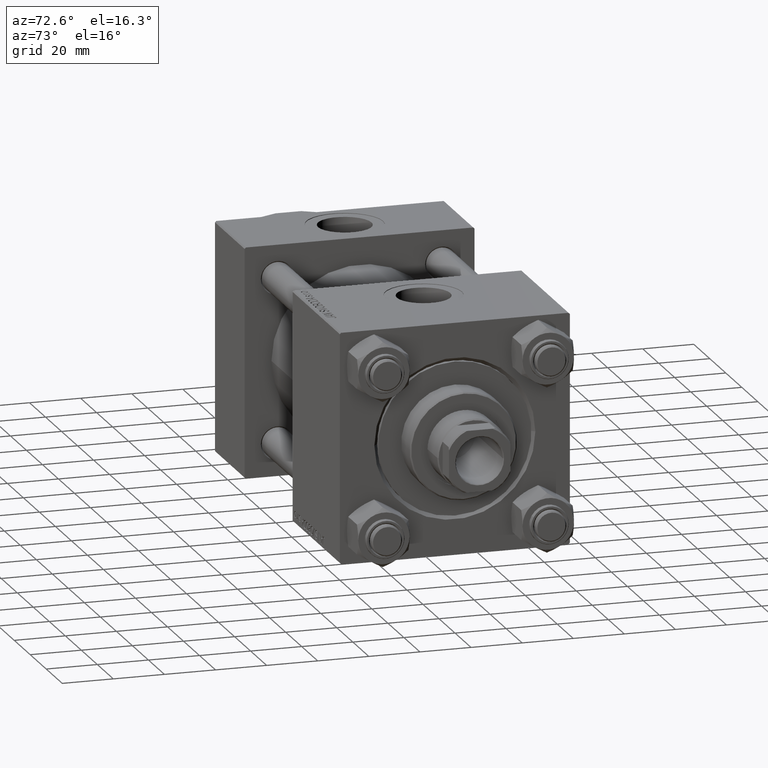
[diagram: clean part render]
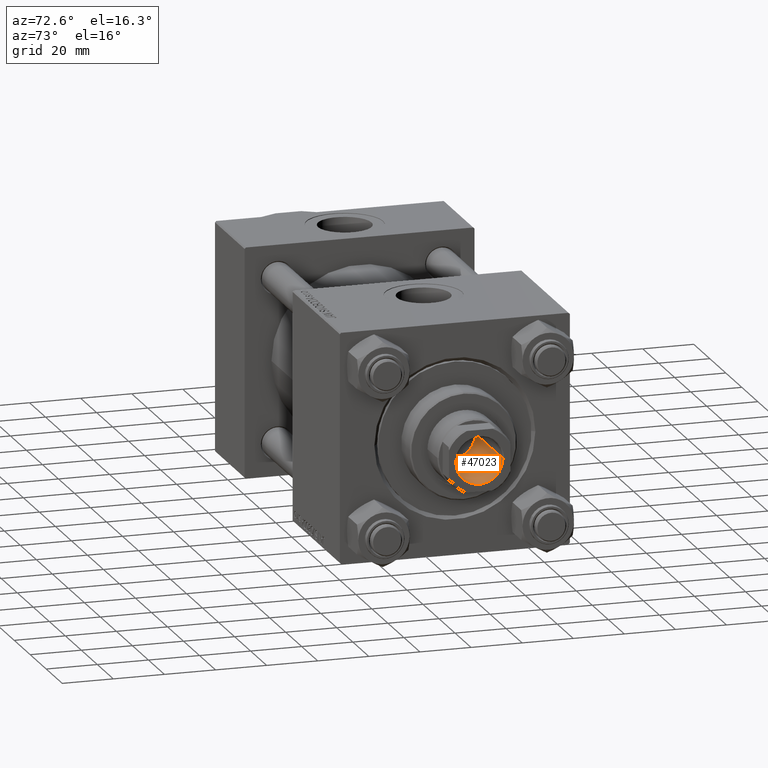
[diagram: same view with one face highlighted and labeled with its STEP entity id]
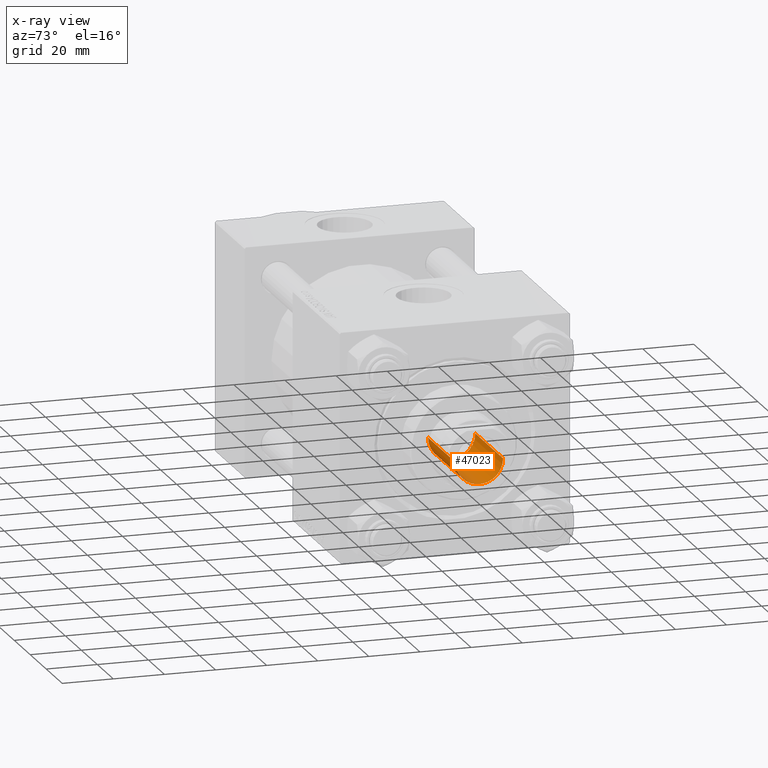
[diagram: x-ray of the same camera — body ghosted, the highlighted face saturated]
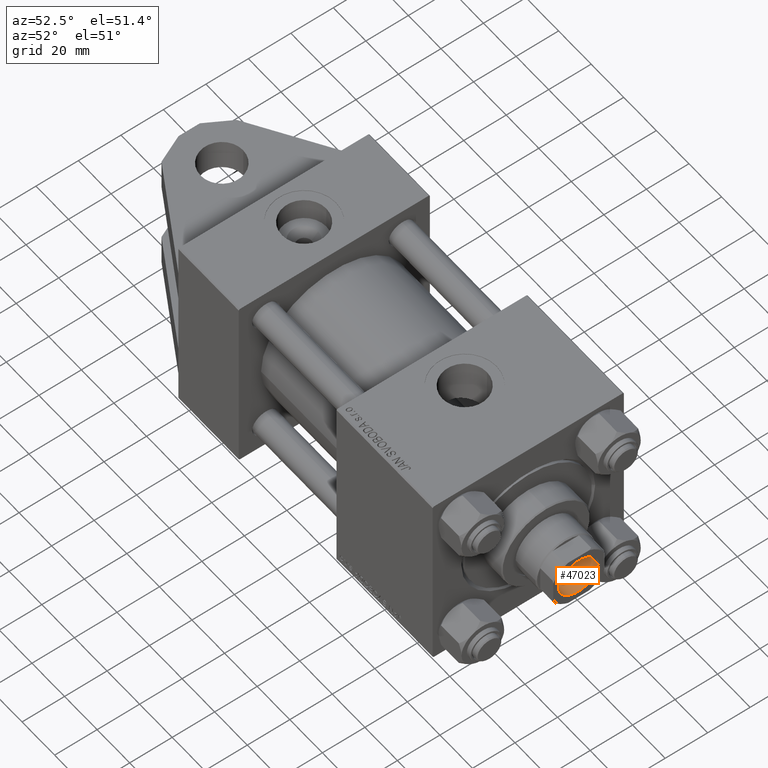
[diagram: same view with one face highlighted and labeled with its STEP entity id]
A machine part, auxiliary view. The second image highlights one B-rep face of the part: STEP entity #47023.
The next image is the same camera in x-ray: the body ghosted, the highlighted face saturated — about 1% of this face is hidden behind the body in this view.
A second angle (auxiliary view) of the same face is appended — the face is thin or edge-on in the first view.
In plain terms, the highlighted cylindrical surface (edge-blend (fillet) strip) has radius 9.25 mm, axis along (1, 0, 0).
Its self-contained STEP definition (entity closure, byte-faithful):
#2223 = FACE_OUTER_BOUND ( 'NONE', #32536, .T. ) ;
#5558 = AXIS2_PLACEMENT_3D ( 'NONE', #17467, #45743, #41053 ) ;
#6167 = DIRECTION ( 'NONE',  ( -0.000000000000000000, -0.000000000000000000, 1.000000000000000000 ) ) ;
#6969 = DIRECTION ( 'NONE',  ( -0.000000000000000000, -0.000000000000000000, 1.000000000000000000 ) ) ;
#13076 = VERTEX_POINT ( 'NONE', #39160 ) ;
#13295 = CIRCLE ( 'NONE', #48401, 9.249999999999992895 ) ;
#15166 = LINE ( 'NONE', #43201, #44379 ) ;
#17467 = CARTESIAN_POINT ( 'NONE',  ( 0.000000000000000000, 0.000000000000000000, 149.6999999999999886 ) ) ;
#17862 = VERTEX_POINT ( 'NONE', #49084 ) ;
#17962 = CARTESIAN_POINT ( 'NONE',  ( 0.000000000000000000, 0.000000000000000000, 150.0000000000000000 ) ) ;
#19453 = CARTESIAN_POINT ( 'NONE',  ( 9.249999999999992895, 0.000000000000000000, 114.9999999999999858 ) ) ;
#20128 = DIRECTION ( 'NONE',  ( -0.000000000000000000, -0.000000000000000000, 1.000000000000000000 ) ) ;
#21622 = DIRECTION ( 'NONE',  ( 1.000000000000000000, 0.000000000000000000, 0.000000000000000000 ) ) ;
#21942 = CARTESIAN_POINT ( 'NONE',  ( 9.249999999999994671, 0.000000000000000000, 150.0000000000000000 ) ) ;
#22427 = AXIS2_PLACEMENT_3D ( 'NONE', #17962, #6167, #21622 ) ;
#22936 = DIRECTION ( 'NONE',  ( 1.000000000000000000, 0.000000000000000000, 0.000000000000000000 ) ) ;
#26649 = DIRECTION ( 'NONE',  ( -0.000000000000000000, -0.000000000000000000, 1.000000000000000000 ) ) ;
#28137 = CIRCLE ( 'NONE', #5558, 9.249999999999994671 ) ;
#28560 = VECTOR ( 'NONE', #26649, 1000.000000000000000 ) ;
#28605 = CARTESIAN_POINT ( 'NONE',  ( 0.000000000000000000, 0.000000000000000000, 114.9999999999999858 ) ) ;
#31464 = EDGE_CURVE ( 'NONE', #17862, #44564, #15166, .T. ) ;
#32536 = EDGE_LOOP ( 'NONE', ( #48573, #36439, #43704, #45771 ) ) ;
#32765 = EDGE_CURVE ( 'NONE', #36877, #13076, #50231, .T. ) ;
#33408 = CYLINDRICAL_SURFACE ( 'NONE', #22427, 9.249999999999994671 ) ;
#35627 = CARTESIAN_POINT ( 'NONE',  ( -9.249999999999994671, 1.132798289211300909E-15, 149.6999999999999886 ) ) ;
#36439 = ORIENTED_EDGE ( 'NONE', *, *, #44370, .F. ) ;
#36877 = VERTEX_POINT ( 'NONE', #19453 ) ;
#38639 = EDGE_CURVE ( 'NONE', #13076, #44564, #28137, .T. ) ;
#39160 = CARTESIAN_POINT ( 'NONE',  ( 9.249999999999994671, 0.000000000000000000, 149.6999999999999886 ) ) ;
#41053 = DIRECTION ( 'NONE',  ( 1.000000000000000000, 0.000000000000000000, 0.000000000000000000 ) ) ;
#43201 = CARTESIAN_POINT ( 'NONE',  ( -9.249999999999994671, 1.132798289211300909E-15, 150.0000000000000000 ) ) ;
#43704 = ORIENTED_EDGE ( 'NONE', *, *, #32765, .T. ) ;
#44370 = EDGE_CURVE ( 'NONE', #36877, #17862, #13295, .T. ) ;
#44379 = VECTOR ( 'NONE', #20128, 1000.000000000000000 ) ;
#44564 = VERTEX_POINT ( 'NONE', #35627 ) ;
#45743 = DIRECTION ( 'NONE',  ( 0.000000000000000000, 0.000000000000000000, 1.000000000000000000 ) ) ;
#45771 = ORIENTED_EDGE ( 'NONE', *, *, #38639, .T. ) ;
#47023 = ADVANCED_FACE ( 'NONE', ( #2223 ), #33408, .F. ) ;
#48401 = AXIS2_PLACEMENT_3D ( 'NONE', #28605, #6969, #22936 ) ;
#48573 = ORIENTED_EDGE ( 'NONE', *, *, #31464, .F. ) ;
#49084 = CARTESIAN_POINT ( 'NONE',  ( -9.249999999999992895, 1.132798289211300712E-15, 114.9999999999999858 ) ) ;
#50231 = LINE ( 'NONE', #21942, #28560 ) ;